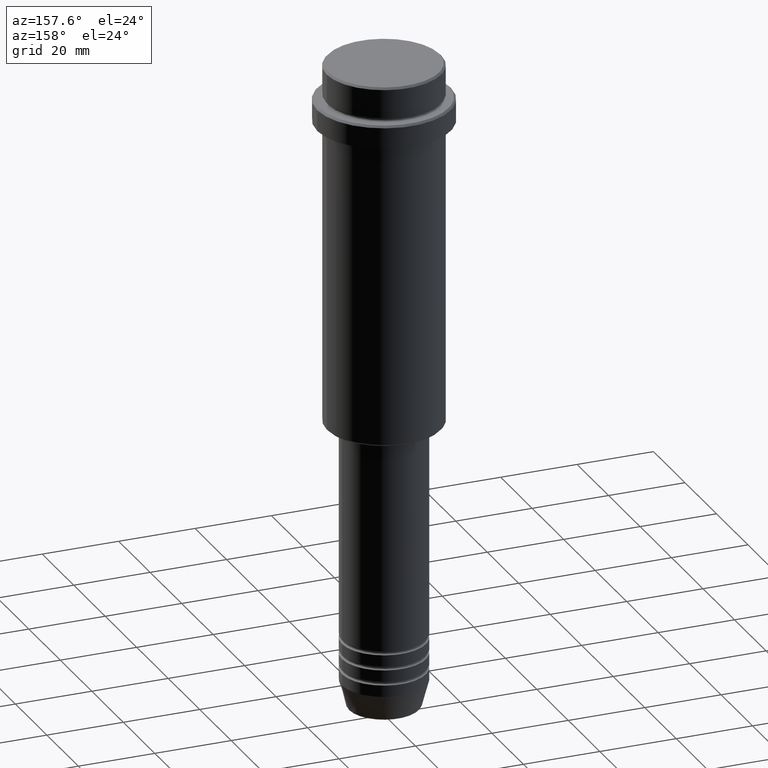
[diagram: clean part render]
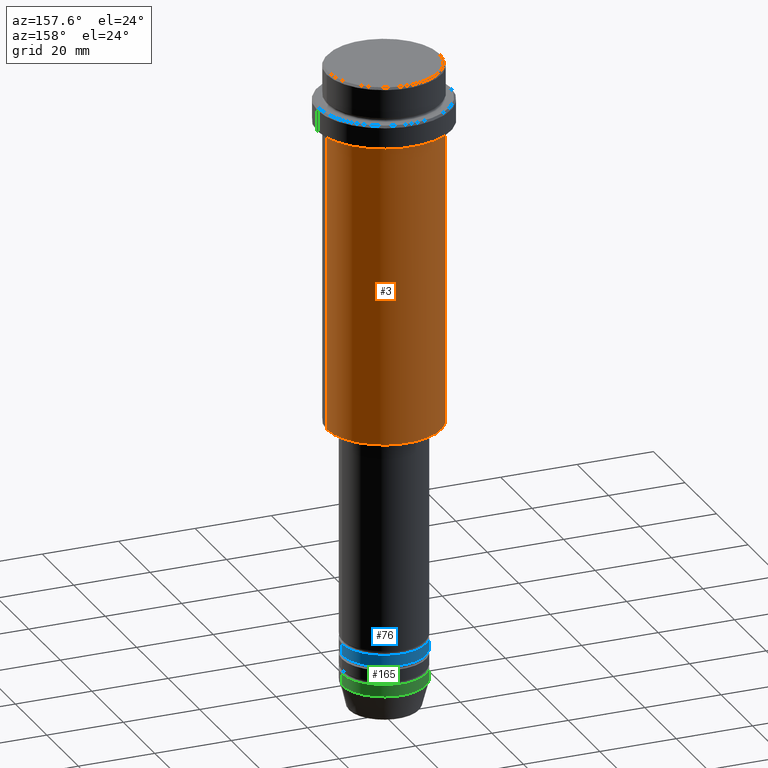
[diagram: same view with three faces highlighted in distinct colors, each labeled with its STEP entity id]
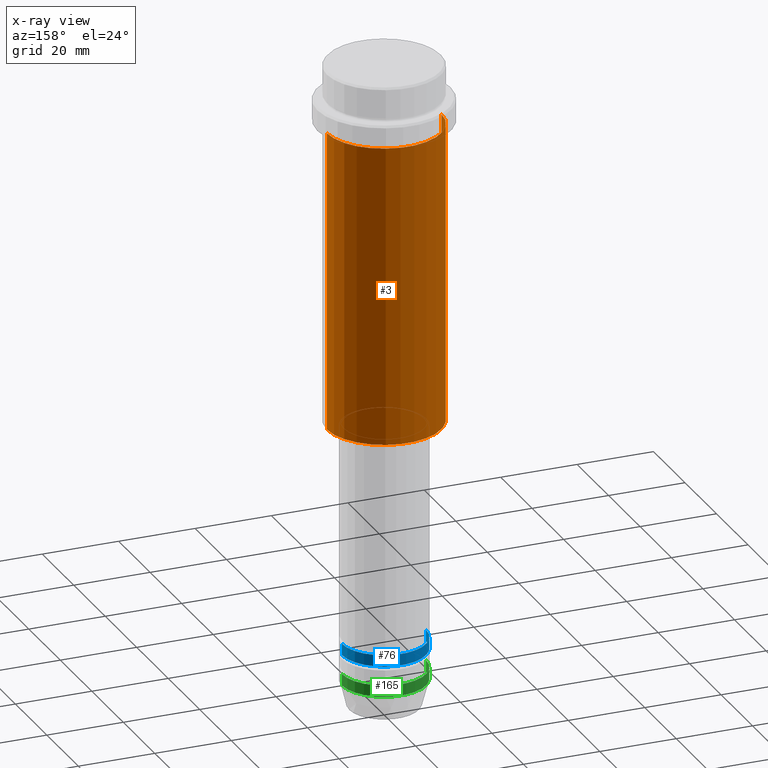
[diagram: x-ray of the same camera — body ghosted, the three highlighted faces saturated]
A machine part, auxiliary view with three faces highlighted in distinct colors.
The next image is the same camera in x-ray (body ghosted, the three faces saturated) — at least one of them is partly hidden behind the body in this view.
Their STEP definitions:

[orange] entity #3 — the highlighted cylindrical surface (partial cylindrical patch) has radius 15 mm, axis along (-0, -0, 1).
#3 = ADVANCED_FACE ( 'NONE', ( #260 ), #39, .T. ) ;
#39 = CYLINDRICAL_SURFACE ( 'NONE', #164, 15.00000000000000000 ) ;
#122 = DIRECTION ( 'NONE',  ( 1.000000000000000000, 0.000000000000000000, 0.000000000000000000 ) ) ;
#148 = VECTOR ( 'NONE', #660, 1000.000000000000000 ) ;
#164 = AXIS2_PLACEMENT_3D ( 'NONE', #791, #1329, #122 ) ;
#172 = CIRCLE ( 'NONE', #1342, 15.00000000000000000 ) ;
#220 = CARTESIAN_POINT ( 'NONE',  ( 15.00000000000000000, 0.000000000000000000, 0.000000000000000000 ) ) ;
#234 = CARTESIAN_POINT ( 'NONE',  ( -15.00000000000000355, 1.836970198721029983E-15, -16.00000000000000000 ) ) ;
#242 = CARTESIAN_POINT ( 'NONE',  ( 15.00000000000000000, 0.000000000000000000, -94.49999999999997158 ) ) ;
#260 = FACE_OUTER_BOUND ( 'NONE', #1007, .T. ) ;
#264 = AXIS2_PLACEMENT_3D ( 'NONE', #1148, #790, #484 ) ;
#273 = VERTEX_POINT ( 'NONE', #1205 ) ;
#334 = ORIENTED_EDGE ( 'NONE', *, *, #882, .T. ) ;
#347 = ORIENTED_EDGE ( 'NONE', *, *, #427, .F. ) ;
#427 = EDGE_CURVE ( 'NONE', #273, #1284, #1369, .T. ) ;
#483 = DIRECTION ( 'NONE',  ( -1.000000000000000000, 0.000000000000000000, 0.000000000000000000 ) ) ;
#484 = DIRECTION ( 'NONE',  ( 1.000000000000000000, 0.000000000000000000, 0.000000000000000000 ) ) ;
#503 = DIRECTION ( 'NONE',  ( -0.000000000000000000, -0.000000000000000000, 1.000000000000000000 ) ) ;
#542 = ORIENTED_EDGE ( 'NONE', *, *, #789, .F. ) ;
#543 = LINE ( 'NONE', #220, #148 ) ;
#571 = DIRECTION ( 'NONE',  ( -0.000000000000000000, -0.000000000000000000, 1.000000000000000000 ) ) ;
#574 = VERTEX_POINT ( 'NONE', #964 ) ;
#594 = EDGE_CURVE ( 'NONE', #574, #1284, #970, .T. ) ;
#660 = DIRECTION ( 'NONE',  ( -0.000000000000000000, -0.000000000000000000, 1.000000000000000000 ) ) ;
#681 = CARTESIAN_POINT ( 'NONE',  ( 0.000000000000000000, 0.000000000000000000, -94.49999999999997158 ) ) ;
#707 = ORIENTED_EDGE ( 'NONE', *, *, #594, .T. ) ;
#736 = CARTESIAN_POINT ( 'NONE',  ( -15.00000000000000000, 1.836970198721029589E-15, 0.000000000000000000 ) ) ;
#789 = EDGE_CURVE ( 'NONE', #864, #273, #543, .T. ) ;
#790 = DIRECTION ( 'NONE',  ( -0.000000000000000000, -0.000000000000000000, 1.000000000000000000 ) ) ;
#791 = CARTESIAN_POINT ( 'NONE',  ( 0.000000000000000000, 0.000000000000000000, 0.000000000000000000 ) ) ;
#864 = VERTEX_POINT ( 'NONE', #242 ) ;
#882 = EDGE_CURVE ( 'NONE', #864, #574, #172, .T. ) ;
#905 = VECTOR ( 'NONE', #503, 1000.000000000000000 ) ;
#964 = CARTESIAN_POINT ( 'NONE',  ( -15.00000000000000000, 1.836970198721029589E-15, -94.49999999999997158 ) ) ;
#970 = LINE ( 'NONE', #736, #905 ) ;
#1007 = EDGE_LOOP ( 'NONE', ( #334, #707, #347, #542 ) ) ;
#1148 = CARTESIAN_POINT ( 'NONE',  ( 0.000000000000000000, 0.000000000000000000, -16.00000000000000000 ) ) ;
#1205 = CARTESIAN_POINT ( 'NONE',  ( 15.00000000000000178, 0.000000000000000000, -16.00000000000000000 ) ) ;
#1284 = VERTEX_POINT ( 'NONE', #234 ) ;
#1329 = DIRECTION ( 'NONE',  ( -0.000000000000000000, -0.000000000000000000, 1.000000000000000000 ) ) ;
#1342 = AXIS2_PLACEMENT_3D ( 'NONE', #681, #571, #483 ) ;
#1369 = CIRCLE ( 'NONE', #264, 15.00000000000000178 ) ;

[blue] entity #76 — the highlighted cylindrical surface (partial cylindrical patch) has radius 11 mm, axis along (-0, -0, 1).
#2 = CARTESIAN_POINT ( 'NONE',  ( -11.00000000000000000, 1.347111479062088405E-15, -151.9999999999999147 ) ) ;
#21 = FACE_OUTER_BOUND ( 'NONE', #739, .T. ) ;
#31 = DIRECTION ( 'NONE',  ( 1.000000000000000000, 0.000000000000000000, 0.000000000000000000 ) ) ;
#41 = AXIS2_PLACEMENT_3D ( 'NONE', #440, #710, #369 ) ;
#76 = ADVANCED_FACE ( 'NONE', ( #21 ), #1130, .T. ) ;
#89 = CARTESIAN_POINT ( 'NONE',  ( 11.00000000000000000, 0.000000000000000000, 0.000000000000000000 ) ) ;
#98 = CARTESIAN_POINT ( 'NONE',  ( -11.00000000000000000, 1.347111479062088405E-15, 0.000000000000000000 ) ) ;
#153 = VECTOR ( 'NONE', #785, 1000.000000000000000 ) ;
#154 = VERTEX_POINT ( 'NONE', #1360 ) ;
#170 = VECTOR ( 'NONE', #625, 1000.000000000000000 ) ;
#324 = ORIENTED_EDGE ( 'NONE', *, *, #383, .T. ) ;
#348 = EDGE_CURVE ( 'NONE', #154, #754, #1009, .T. ) ;
#369 = DIRECTION ( 'NONE',  ( 1.000000000000000000, 0.000000000000000000, 0.000000000000000000 ) ) ;
#383 = EDGE_CURVE ( 'NONE', #1012, #154, #726, .T. ) ;
#440 = CARTESIAN_POINT ( 'NONE',  ( 0.000000000000000000, 0.000000000000000000, -154.9999999999999147 ) ) ;
#513 = LINE ( 'NONE', #89, #170 ) ;
#539 = EDGE_CURVE ( 'NONE', #557, #754, #610, .T. ) ;
#545 = EDGE_CURVE ( 'NONE', #1012, #557, #513, .T. ) ;
#557 = VERTEX_POINT ( 'NONE', #1066 ) ;
#582 = AXIS2_PLACEMENT_3D ( 'NONE', #921, #1357, #816 ) ;
#610 = CIRCLE ( 'NONE', #582, 11.00000000000000000 ) ;
#625 = DIRECTION ( 'NONE',  ( -0.000000000000000000, -0.000000000000000000, 1.000000000000000000 ) ) ;
#710 = DIRECTION ( 'NONE',  ( -0.000000000000000000, -0.000000000000000000, 1.000000000000000000 ) ) ;
#726 = CIRCLE ( 'NONE', #41, 11.00000000000000000 ) ;
#739 = EDGE_LOOP ( 'NONE', ( #324, #952, #779, #926 ) ) ;
#754 = VERTEX_POINT ( 'NONE', #2 ) ;
#779 = ORIENTED_EDGE ( 'NONE', *, *, #539, .F. ) ;
#785 = DIRECTION ( 'NONE',  ( -0.000000000000000000, -0.000000000000000000, 1.000000000000000000 ) ) ;
#816 = DIRECTION ( 'NONE',  ( 1.000000000000000000, 0.000000000000000000, 0.000000000000000000 ) ) ;
#835 = CARTESIAN_POINT ( 'NONE',  ( 11.00000000000000000, 0.000000000000000000, -154.9999999999999147 ) ) ;
#892 = CARTESIAN_POINT ( 'NONE',  ( 0.000000000000000000, 0.000000000000000000, 0.000000000000000000 ) ) ;
#921 = CARTESIAN_POINT ( 'NONE',  ( 0.000000000000000000, 0.000000000000000000, -151.9999999999999147 ) ) ;
#926 = ORIENTED_EDGE ( 'NONE', *, *, #545, .F. ) ;
#952 = ORIENTED_EDGE ( 'NONE', *, *, #348, .T. ) ;
#1009 = LINE ( 'NONE', #98, #153 ) ;
#1012 = VERTEX_POINT ( 'NONE', #835 ) ;
#1066 = CARTESIAN_POINT ( 'NONE',  ( 11.00000000000000000, 0.000000000000000000, -151.9999999999999147 ) ) ;
#1109 = DIRECTION ( 'NONE',  ( -0.000000000000000000, -0.000000000000000000, 1.000000000000000000 ) ) ;
#1130 = CYLINDRICAL_SURFACE ( 'NONE', #1379, 11.00000000000000000 ) ;
#1357 = DIRECTION ( 'NONE',  ( -0.000000000000000000, -0.000000000000000000, 1.000000000000000000 ) ) ;
#1360 = CARTESIAN_POINT ( 'NONE',  ( -11.00000000000000000, 1.347111479062088405E-15, -154.9999999999999147 ) ) ;
#1379 = AXIS2_PLACEMENT_3D ( 'NONE', #892, #1109, #31 ) ;

[green] entity #165 — the highlighted cylindrical surface (partial cylindrical patch) has radius 11 mm, axis along (-0, -0, 1).
#88 = VERTEX_POINT ( 'NONE', #569 ) ;
#134 = ORIENTED_EDGE ( 'NONE', *, *, #329, .F. ) ;
#165 = ADVANCED_FACE ( 'NONE', ( #1149 ), #603, .T. ) ;
#167 = DIRECTION ( 'NONE',  ( 1.000000000000000000, 0.000000000000000000, 0.000000000000000000 ) ) ;
#199 = VECTOR ( 'NONE', #207, 1000.000000000000000 ) ;
#207 = DIRECTION ( 'NONE',  ( -0.000000000000000000, -0.000000000000000000, 1.000000000000000000 ) ) ;
#214 = DIRECTION ( 'NONE',  ( 1.000000000000000000, 0.000000000000000000, 0.000000000000000000 ) ) ;
#279 = EDGE_CURVE ( 'NONE', #446, #531, #669, .T. ) ;
#329 = EDGE_CURVE ( 'NONE', #524, #88, #535, .T. ) ;
#351 = EDGE_CURVE ( 'NONE', #88, #531, #1050, .T. ) ;
#374 = CARTESIAN_POINT ( 'NONE',  ( 11.00000000000000000, 0.000000000000000000, -163.0000000000000000 ) ) ;
#425 = AXIS2_PLACEMENT_3D ( 'NONE', #1100, #898, #214 ) ;
#435 = DIRECTION ( 'NONE',  ( -0.000000000000000000, -0.000000000000000000, 1.000000000000000000 ) ) ;
#446 = VERTEX_POINT ( 'NONE', #697 ) ;
#524 = VERTEX_POINT ( 'NONE', #374 ) ;
#531 = VERTEX_POINT ( 'NONE', #1034 ) ;
#535 = LINE ( 'NONE', #977, #774 ) ;
#546 = ORIENTED_EDGE ( 'NONE', *, *, #351, .F. ) ;
#569 = CARTESIAN_POINT ( 'NONE',  ( 11.00000000000000000, 0.000000000000000000, -160.0000000000000000 ) ) ;
#603 = CYLINDRICAL_SURFACE ( 'NONE', #747, 11.00000000000000000 ) ;
#659 = ORIENTED_EDGE ( 'NONE', *, *, #676, .T. ) ;
#662 = CARTESIAN_POINT ( 'NONE',  ( -11.00000000000000000, 1.347111479062088405E-15, 0.000000000000000000 ) ) ;
#667 = CARTESIAN_POINT ( 'NONE',  ( 0.000000000000000000, 0.000000000000000000, -163.0000000000000000 ) ) ;
#669 = LINE ( 'NONE', #662, #199 ) ;
#676 = EDGE_CURVE ( 'NONE', #524, #446, #1115, .T. ) ;
#680 = ORIENTED_EDGE ( 'NONE', *, *, #279, .T. ) ;
#697 = CARTESIAN_POINT ( 'NONE',  ( -11.00000000000000000, 1.347111479062088405E-15, -163.0000000000000000 ) ) ;
#747 = AXIS2_PLACEMENT_3D ( 'NONE', #1405, #1185, #167 ) ;
#774 = VECTOR ( 'NONE', #435, 1000.000000000000000 ) ;
#898 = DIRECTION ( 'NONE',  ( -0.000000000000000000, -0.000000000000000000, 1.000000000000000000 ) ) ;
#977 = CARTESIAN_POINT ( 'NONE',  ( 11.00000000000000000, 0.000000000000000000, 0.000000000000000000 ) ) ;
#1034 = CARTESIAN_POINT ( 'NONE',  ( -11.00000000000000000, 1.347111479062088405E-15, -160.0000000000000000 ) ) ;
#1045 = AXIS2_PLACEMENT_3D ( 'NONE', #667, #1104, #1190 ) ;
#1050 = CIRCLE ( 'NONE', #425, 11.00000000000000000 ) ;
#1100 = CARTESIAN_POINT ( 'NONE',  ( 0.000000000000000000, 0.000000000000000000, -160.0000000000000000 ) ) ;
#1104 = DIRECTION ( 'NONE',  ( -0.000000000000000000, -0.000000000000000000, 1.000000000000000000 ) ) ;
#1115 = CIRCLE ( 'NONE', #1045, 11.00000000000000000 ) ;
#1149 = FACE_OUTER_BOUND ( 'NONE', #1291, .T. ) ;
#1185 = DIRECTION ( 'NONE',  ( -0.000000000000000000, -0.000000000000000000, 1.000000000000000000 ) ) ;
#1190 = DIRECTION ( 'NONE',  ( 1.000000000000000000, 0.000000000000000000, 0.000000000000000000 ) ) ;
#1291 = EDGE_LOOP ( 'NONE', ( #659, #680, #546, #134 ) ) ;
#1405 = CARTESIAN_POINT ( 'NONE',  ( 0.000000000000000000, 0.000000000000000000, 0.000000000000000000 ) ) ;